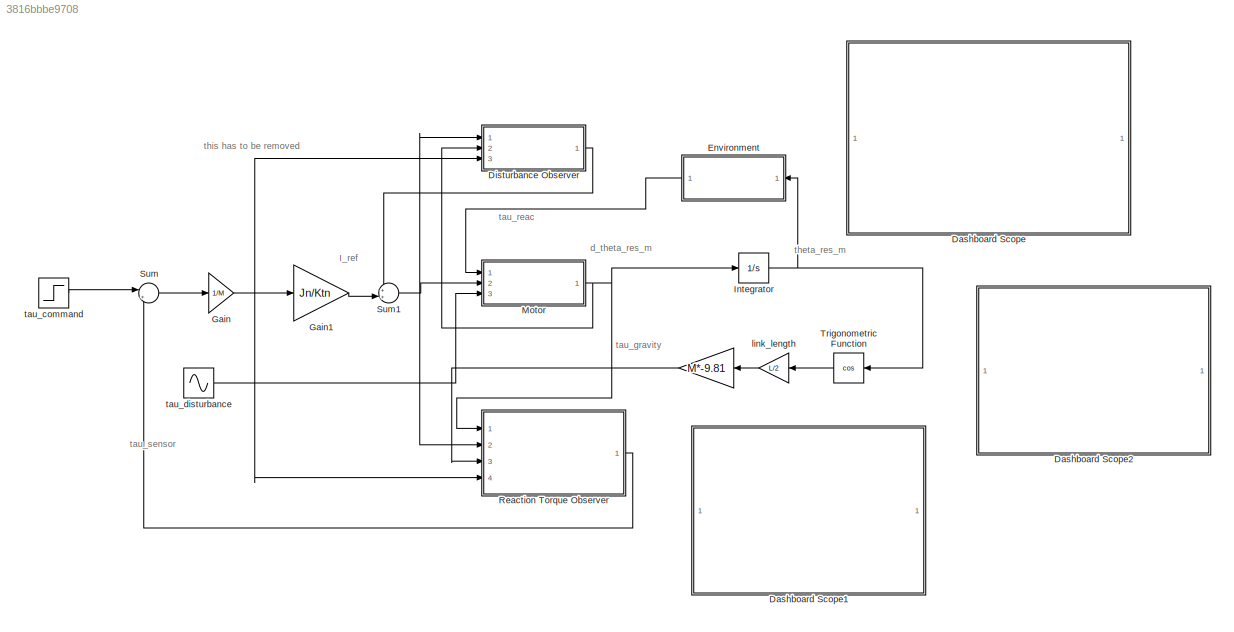
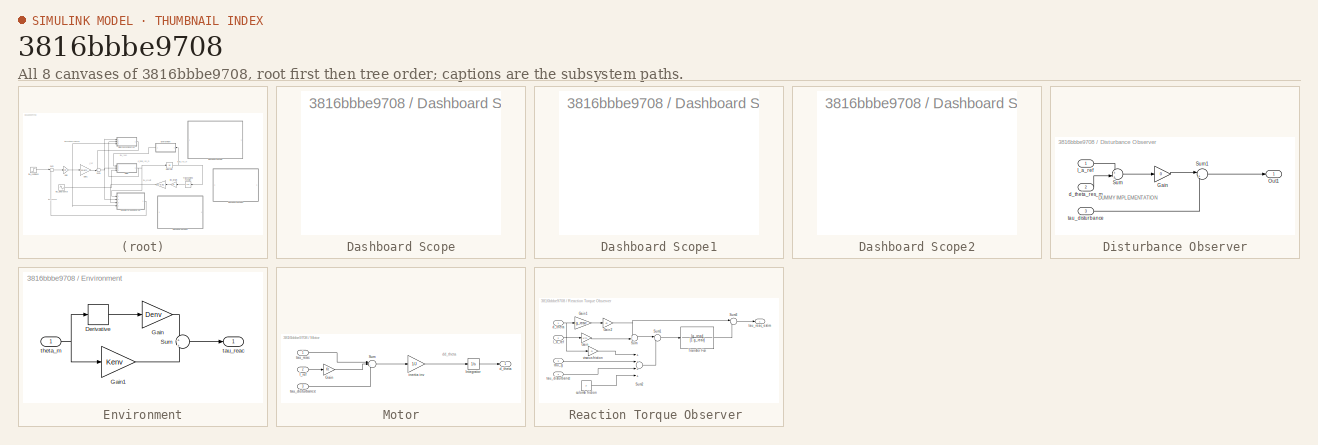
[diagram: thumbnail index - all 8 canvases of the model, root first then tree order]
MODEL slx_3816bbbe9708
KIND model
CONFIG AbsTol = auto
CONFIG EnableMultiTasking = off
CONFIG FixedStep = auto
CONFIG MaxStep = auto
CONFIG MinStep = auto
CONFIG RelTol = 1e-3
CONFIG SampleTimeConstraint = Unconstrained
CONFIG Solver = VariableStepAuto
CONFIG SolverName = VariableStepAuto
CONFIG StartTime = 0.0
CONFIG StopTime = 10.0
BLOCK [Gain]  
  Gain = M*-9.81
  OutDataTypeStr = Inherit: Inherit via internal rule
  ParamDataTypeStr = Inherit: Inherit via internal rule
  SaturateOnIntegerOverflow = off
BLOCK [SubSystem] Dashboard Scope
  DialogController = hmiCreateDDGDialog
  IsWebBlock = on
  MaskHideContents = on
  Ports = []
  RequestExecContextInheritance = off
  Variant = off
BLOCK [SubSystem] Dashboard Scope1
  DialogController = hmiCreateDDGDialog
  IsWebBlock = on
  MaskHideContents = on
  Ports = []
  RequestExecContextInheritance = off
  Variant = off
BLOCK [SubSystem] Dashboard Scope2
  DialogController = hmiCreateDDGDialog
  IsWebBlock = on
  MaskHideContents = on
  Ports = []
  RequestExecContextInheritance = off
  Variant = off
BLOCK [SubSystem] Disturbance Observer
  Ports = [3, 1]
  RequestExecContextInheritance = off
  Variant = off
BLOCK [Gain] Disturbance Observer/Gain
  Gain = 0
  OutDataTypeStr = Inherit: Inherit via internal rule
  ParamDataTypeStr = Inherit: Inherit via internal rule
  SaturateOnIntegerOverflow = off
BLOCK [Inport] Disturbance Observer/I_a_ref 
  IconDisplay = Port number
BLOCK [Outport] Disturbance Observer/Out1
  IconDisplay = Port number
BLOCK [Sum] Disturbance Observer/Sum
  IconShape = round
  InputSameDT = off
  Inputs = +|+
  OutDataTypeStr = Inherit: Inherit via internal rule
  Ports = [2, 1]
  SaturateOnIntegerOverflow = off
BLOCK [Sum] Disturbance Observer/Sum1
  IconShape = round
  InputSameDT = off
  Inputs = |++
  OutDataTypeStr = Inherit: Inherit via internal rule
  Ports = [2, 1]
  SaturateOnIntegerOverflow = off
BLOCK [Inport] Disturbance Observer/d_theta_res_m 
  IconDisplay = Port number
  Port = 2
BLOCK [Inport] Disturbance Observer/tau_disturbance 
  IconDisplay = Port number
  Port = 3
BLOCK [SubSystem] Environment
  Ports = [1, 1]
  RequestExecContextInheritance = off
  Variant = off
BLOCK [Derivative] Environment/Derivative
  CoefficientInTFapproximation = 1
BLOCK [Gain] Environment/Gain
  Gain = Denv
  OutDataTypeStr = Inherit: Inherit via internal rule
  ParamDataTypeStr = Inherit: Inherit via internal rule
  SaturateOnIntegerOverflow = off
BLOCK [Gain] Environment/Gain1
  Gain = Kenv
  OutDataTypeStr = Inherit: Inherit via internal rule
  ParamDataTypeStr = Inherit: Inherit via internal rule
  SaturateOnIntegerOverflow = off
BLOCK [Sum] Environment/Sum
  IconShape = round
  InputSameDT = off
  Inputs = +|+
  OutDataTypeStr = Inherit: Inherit via internal rule
  Ports = [2, 1]
  SaturateOnIntegerOverflow = off
BLOCK [Outport] Environment/tau_reac 
  IconDisplay = Port number
BLOCK [Inport] Environment/theta_m
  IconDisplay = Port number
BLOCK [Gain] Gain
  Gain = 1/M
  OutDataTypeStr = Inherit: Inherit via internal rule
  ParamDataTypeStr = Inherit: Inherit via internal rule
  SaturateOnIntegerOverflow = off
BLOCK [Gain] Gain1
  Gain = Jn/Ktn
  OutDataTypeStr = Inherit: Inherit via internal rule
  ParamDataTypeStr = Inherit: Inherit via internal rule
  SaturateOnIntegerOverflow = off
BLOCK [Integrator] Integrator
  Ports = [1, 1]
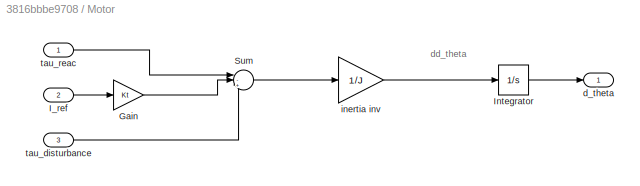
BLOCK [SubSystem] Motor
  Ports = [3, 1]
  RequestExecContextInheritance = off
  Variant = off
BLOCK [Gain] Motor/Gain
  Gain = Kt
  OutDataTypeStr = Inherit: Inherit via internal rule
  ParamDataTypeStr = Inherit: Inherit via internal rule
  SaturateOnIntegerOverflow = off
BLOCK [Inport] Motor/I_ref
  IconDisplay = Port number
  Port = 2
BLOCK [Integrator] Motor/Integrator
  Ports = [1, 1]
BLOCK [Sum] Motor/Sum
  IconShape = round
  InputSameDT = off
  Inputs = |-+-
  OutDataTypeStr = Inherit: Inherit via internal rule
  Ports = [3, 1]
  SaturateOnIntegerOverflow = off
BLOCK [Outport] Motor/d_theta 
  IconDisplay = Port number
BLOCK [Gain] Motor/inertia inv 
  Gain = 1/J
  OutDataTypeStr = Inherit: Inherit via internal rule
  ParamDataTypeStr = Inherit: Inherit via internal rule
  SaturateOnIntegerOverflow = off
BLOCK [Inport] Motor/tau_disturbance 
  IconDisplay = Port number
  Port = 3
BLOCK [Inport] Motor/tau_reac
  IconDisplay = Port number
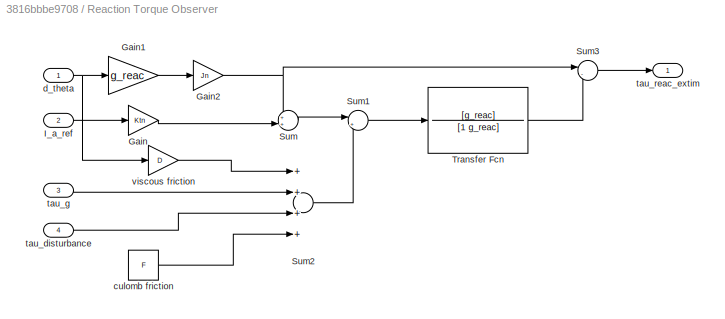
BLOCK [SubSystem] Reaction Torque Observer 
  Ports = [4, 1]
  RequestExecContextInheritance = off
  Variant = off
BLOCK [Gain] Reaction Torque Observer /Gain
  Gain = Ktn
  OutDataTypeStr = Inherit: Inherit via internal rule
  ParamDataTypeStr = Inherit: Inherit via internal rule
  SaturateOnIntegerOverflow = off
BLOCK [Gain] Reaction Torque Observer /Gain1
  Gain = g_reac
  OutDataTypeStr = Inherit: Inherit via internal rule
  ParamDataTypeStr = Inherit: Inherit via internal rule
  SaturateOnIntegerOverflow = off
BLOCK [Gain] Reaction Torque Observer /Gain2
  Gain = Jn
  OutDataTypeStr = Inherit: Inherit via internal rule
  ParamDataTypeStr = Inherit: Inherit via internal rule
  SaturateOnIntegerOverflow = off
BLOCK [Inport] Reaction Torque Observer /I_a_ref 
  IconDisplay = Port number
  Port = 2
BLOCK [Sum] Reaction Torque Observer /Sum
  IconShape = round
  InputSameDT = off
  Inputs = ++|
  OutDataTypeStr = Inherit: Inherit via internal rule
  Ports = [2, 1]
  SaturateOnIntegerOverflow = off
BLOCK [Sum] Reaction Torque Observer /Sum1
  IconShape = round
  InputSameDT = off
  Inputs = |+-
  OutDataTypeStr = Inherit: Inherit via internal rule
  Ports = [2, 1]
  SaturateOnIntegerOverflow = off
BLOCK [Sum] Reaction Torque Observer /Sum2
  InputSameDT = off
  Inputs = ++++
  OutDataTypeStr = Inherit: Inherit via internal rule
  Ports = [4, 1]
  SaturateOnIntegerOverflow = off
BLOCK [Sum] Reaction Torque Observer /Sum3
  IconShape = round
  InputSameDT = off
  Inputs = |-+
  OutDataTypeStr = Inherit: Inherit via internal rule
  Ports = [2, 1]
  SaturateOnIntegerOverflow = off
BLOCK [TransferFcn] Reaction Torque Observer /Transfer Fcn
  Denominator = [1 g_reac]
  Numerator = [g_reac]
BLOCK [Constant] Reaction Torque Observer /culomb friction 
  Value = F
BLOCK [Inport] Reaction Torque Observer /d_theta 
  IconDisplay = Port number
BLOCK [Inport] Reaction Torque Observer /tau_disturbance 
  IconDisplay = Port number
  Port = 4
BLOCK [Inport] Reaction Torque Observer /tau_g 
  IconDisplay = Port number
  Port = 3
BLOCK [Outport] Reaction Torque Observer /tau_reac_extim 
  IconDisplay = Port number
BLOCK [Gain] Reaction Torque Observer /viscous friction 
  Gain = D
  OutDataTypeStr = Inherit: Inherit via internal rule
  ParamDataTypeStr = Inherit: Inherit via internal rule
  SaturateOnIntegerOverflow = off
BLOCK [Sum] Sum
  IconShape = round
  InputSameDT = off
  Inputs = |++
  OutDataTypeStr = Inherit: Inherit via internal rule
  Ports = [2, 1]
  SaturateOnIntegerOverflow = off
BLOCK [Sum] Sum1
  IconShape = round
  InputSameDT = off
  Inputs = ++|
  OutDataTypeStr = Inherit: Inherit via internal rule
  Ports = [2, 1]
  SaturateOnIntegerOverflow = off
BLOCK [Trigonometry] Trigonometric Function
  Operator = cos
  Ports = [1, 1]
BLOCK [Gain] link_length 
  Gain = L/2
  OutDataTypeStr = Inherit: Inherit via internal rule
  ParamDataTypeStr = Inherit: Inherit via internal rule
  SaturateOnIntegerOverflow = off
BLOCK [Step] tau_command
  After = 5
  SampleTime = 0
BLOCK [Sin] tau_disturbance 
  Amplitude = 0.01
  Frequency = 10
  Ports = [0, 1]
  SampleTime = 0
ANNOTATION (root): I_ref
ANNOTATION (root): d_theta_res_m
ANNOTATION (root): tau_gravity
ANNOTATION (root): tau_reac
ANNOTATION (root): tau_sensor
ANNOTATION (root): theta_res_m
ANNOTATION (root): this has to be removed
ANNOTATION Disturbance Observer: DUMMY IMPLEMENTATION
ANNOTATION Motor: dd_theta
LINE  :1 -> Reaction Torque Observer :3
LINE Disturbance Observer/Gain:1 -> Disturbance Observer/Sum1:1
LINE Disturbance Observer/I_a_ref :1 -> Disturbance Observer/Sum:1
LINE Disturbance Observer/Sum1:1 -> Disturbance Observer/Out1:1
LINE Disturbance Observer/Sum:1 -> Disturbance Observer/Gain:1
LINE Disturbance Observer/d_theta_res_m :1 -> Disturbance Observer/Sum:2
LINE Disturbance Observer/tau_disturbance :1 -> Disturbance Observer/Sum1:2
LINE Disturbance Observer:1 -> Sum1:1
LINE Environment/Derivative:1 -> Environment/Gain:1
LINE Environment/Gain1:1 -> Environment/Sum:2
LINE Environment/Gain:1 -> Environment/Sum:1
LINE Environment/Sum:1 -> Environment/tau_reac :1
NET Environment/theta_m:1 -> Environment/Derivative:1, Environment/Gain1:1
LINE Environment:1 -> Motor:1
LINE Gain1:1 -> Sum1:2
LINE Gain:1 -> Gain1:1
NET Integrator:1 -> Environment:1, Trigonometric Function:1
LINE Motor/Gain:1 -> Motor/Sum:2
LINE Motor/I_ref:1 -> Motor/Gain:1
LINE Motor/Integrator:1 -> Motor/d_theta :1
LINE Motor/Sum:1 -> Motor/inertia inv :1
LINE Motor/inertia inv :1 -> Motor/Integrator:1
LINE Motor/tau_disturbance :1 -> Motor/Sum:3
LINE Motor/tau_reac:1 -> Motor/Sum:1
NET Motor:1 -> Disturbance Observer:2, Integrator:1, Reaction Torque Observer :1
LINE Reaction Torque Observer /Gain1:1 -> Reaction Torque Observer /Gain2:1
NET Reaction Torque Observer /Gain2:1 -> Reaction Torque Observer /Sum3:1, Reaction Torque Observer /Sum:1
LINE Reaction Torque Observer /Gain:1 -> Reaction Torque Observer /Sum:2
LINE Reaction Torque Observer /I_a_ref :1 -> Reaction Torque Observer /Gain:1
LINE Reaction Torque Observer /Sum1:1 -> Reaction Torque Observer /Transfer Fcn:1
LINE Reaction Torque Observer /Sum2:1 -> Reaction Torque Observer /Sum1:2
LINE Reaction Torque Observer /Sum3:1 -> Reaction Torque Observer /tau_reac_extim :1
LINE Reaction Torque Observer /Sum:1 -> Reaction Torque Observer /Sum1:1
LINE Reaction Torque Observer /Transfer Fcn:1 -> Reaction Torque Observer /Sum3:2
LINE Reaction Torque Observer /culomb friction :1 -> Reaction Torque Observer /Sum2:4
NET Reaction Torque Observer /d_theta :1 -> Reaction Torque Observer /Gain1:1, Reaction Torque Observer /viscous friction :1
LINE Reaction Torque Observer /tau_disturbance :1 -> Reaction Torque Observer /Sum2:3
LINE Reaction Torque Observer /tau_g :1 -> Reaction Torque Observer /Sum2:2
LINE Reaction Torque Observer /viscous friction :1 -> Reaction Torque Observer /Sum2:1
LINE Reaction Torque Observer :1 -> Sum:2
NET Sum1:1 -> Disturbance Observer:1, Motor:2, Reaction Torque Observer :2
LINE Sum:1 -> Gain:1
LINE Trigonometric Function:1 -> link_length :1
LINE link_length :1 ->  :1
LINE tau_command:1 -> Sum:1
NET tau_disturbance :1 -> Disturbance Observer:3, Motor:3, Reaction Torque Observer :4
note: NET lines group one-source signal fan-out (src -> all destinations, sorted); 1:1 wires keep LINE
